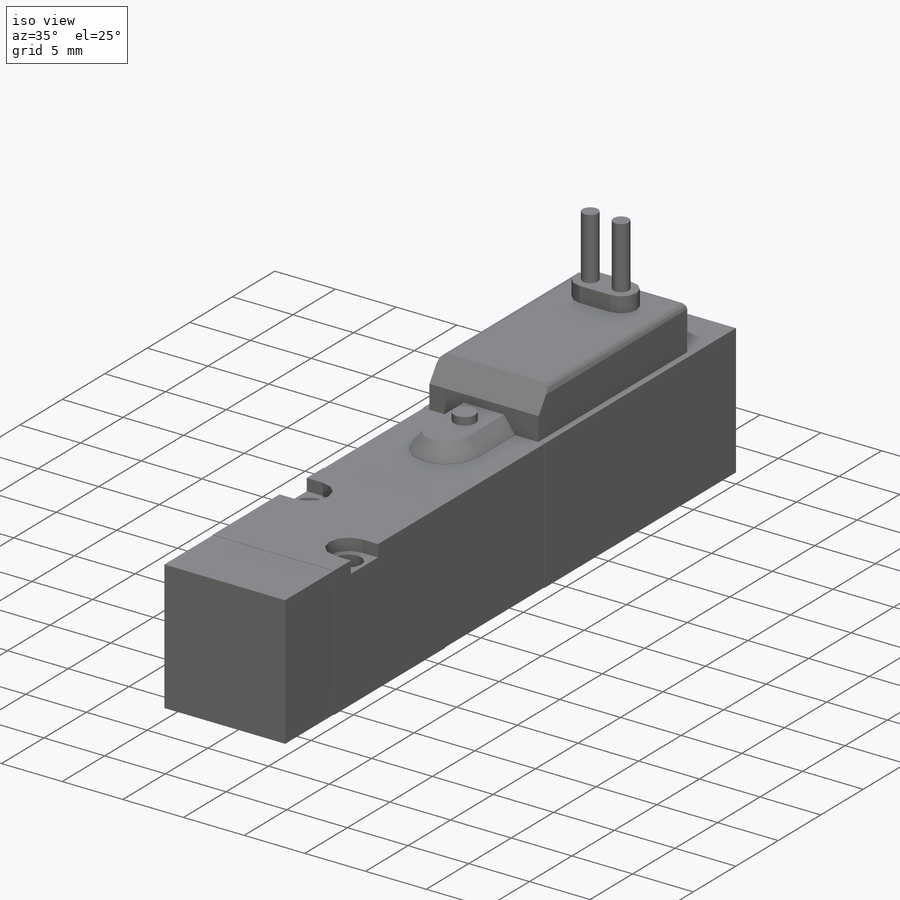
[diagram: iso view]
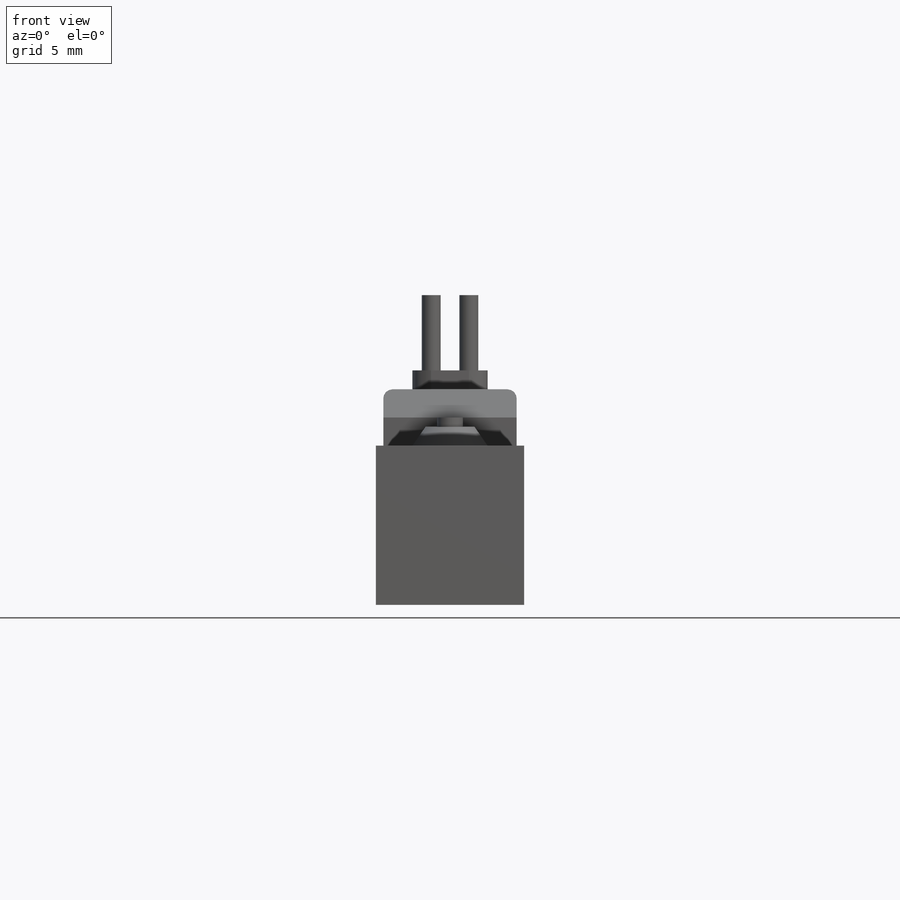
[diagram: front view]
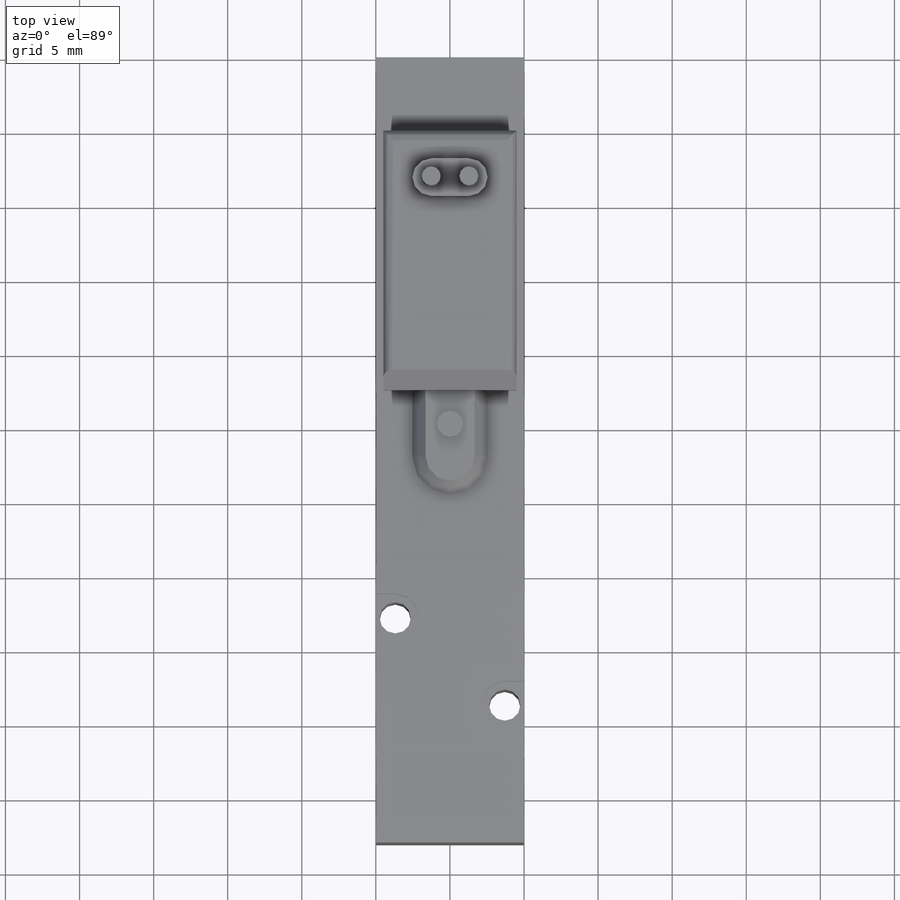
[diagram: top view]
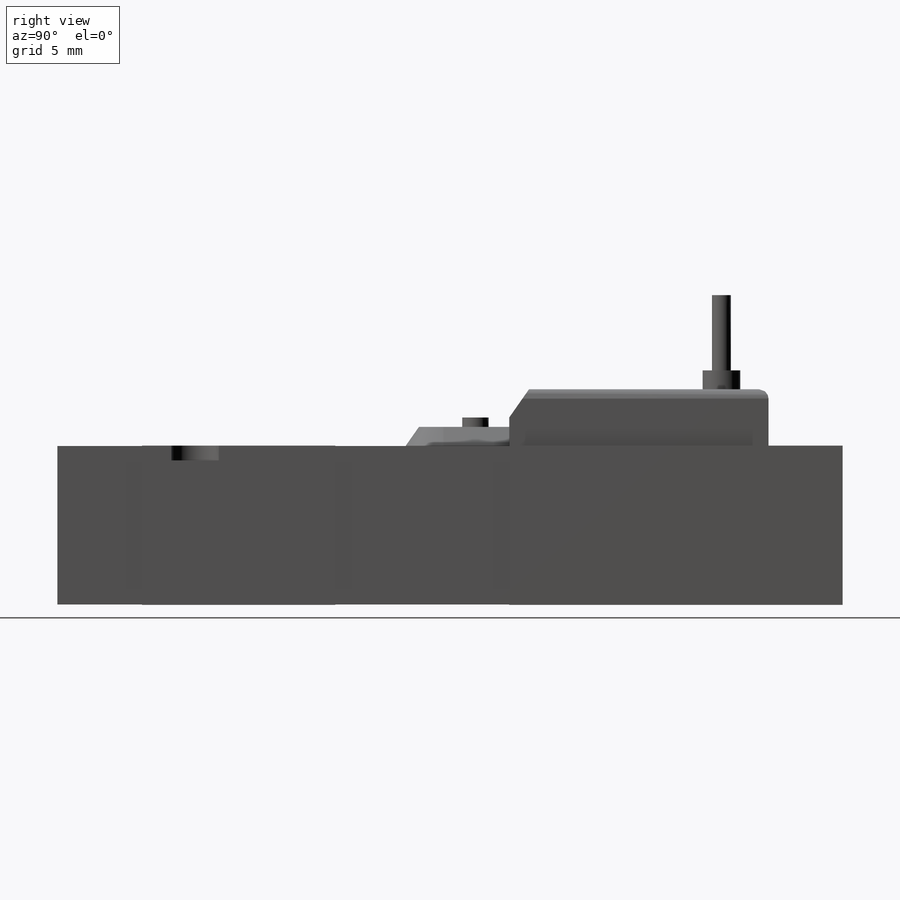
[diagram: right view]
SOLIDWORKS PART (.sldprt)
format: sldprt  version: not decoded by parser v0  size: 337,408 bytes
history: native  units: mm
features: sketch x15, cut_extrude x9, extrude x6, chamfer x2, material x1, fillet x1 (+13 scaffold rows collapsed)
feature tree (47):
  scaffold x13  (default folders/planes/origin — collapsed)
  material  "Material <not specified>"
  sketch  "Sketch1"  dims[D1=10.0076mm]
  extrude  "Extrude1"  Depth=53.0098mm
  sketch  "Sketch2"  dims[D1=5.8928mm]
  cut_extrude  "Cut-Extrude1"  Depth=53.6956mm
  sketch  "Sketch3"  dims[D1=~1.486007mm]
  cut_extrude  "Cut-Extrude2"  Depth=0.9906mm
  sketch  "Sketch6"  dims[D1=0.5mm]
  extrude  "Extrude4"  Depth=3.81mm
  fillet  "Fillet1"  Radius=0.635mm
  sketch  "Sketch7"  dims[D1=4.445mm]
  extrude  "Extrude5"  Depth=1.27mm
  chamfer  "Chamfer1"  Distance=1.27mm Angle=35deg
  sketch  "Sketch8"  dims[D1=24.7904mm]
  extrude  "Extrude6"  Depth=0.635mm
  sketch  "Sketch10"  dims[D1=1.27mm]
  extrude  "Extrude7"  Depth=6.35mm
  sketch  "Sketch11"  dims[D1=2.0066mm]
  cut_extrude  "Cut-Extrude3"  Depth=6.35mm
  sketch  "Sketch12"  dims[D1=1.1578mm]
  extrude  "Extrude8"  Depth=1.27mm
  chamfer  "Chamfer2"  Distance=1.905mm Angle=35deg
  sketch  "Sketch13"  dims[D1=0.0254mm]
  cut_extrude  "Cut-Extrude4"  Depth=5.715mm
  sketch  "Sketch14"  dims[D1=1.9812mm]
  cut_extrude  "Cut-Extrude5"  Depth=0.0254mm
  sketch  "Sketch15"
  cut_extrude  "Cut-Extrude6"  Depth=0.0254mm
  sketch  "Sketch16"
  cut_extrude  "Cut-Extrude7"  Depth=0.0254mm
  sketch  "Sketch17"
  cut_extrude  "Cut-Extrude8"  Depth=0.0254mm
  sketch  "Sketch18"  dims[D1=3.175mm]
  cut_extrude  "Cut-Extrude9"  Depth=2.54mm
decode coverage: 30 of 33 modeling features carry decoded parameters
note: ~ marks probable driven/reference dimensions
note: suppression state not decoded; provenance and decode notes live in map.json
